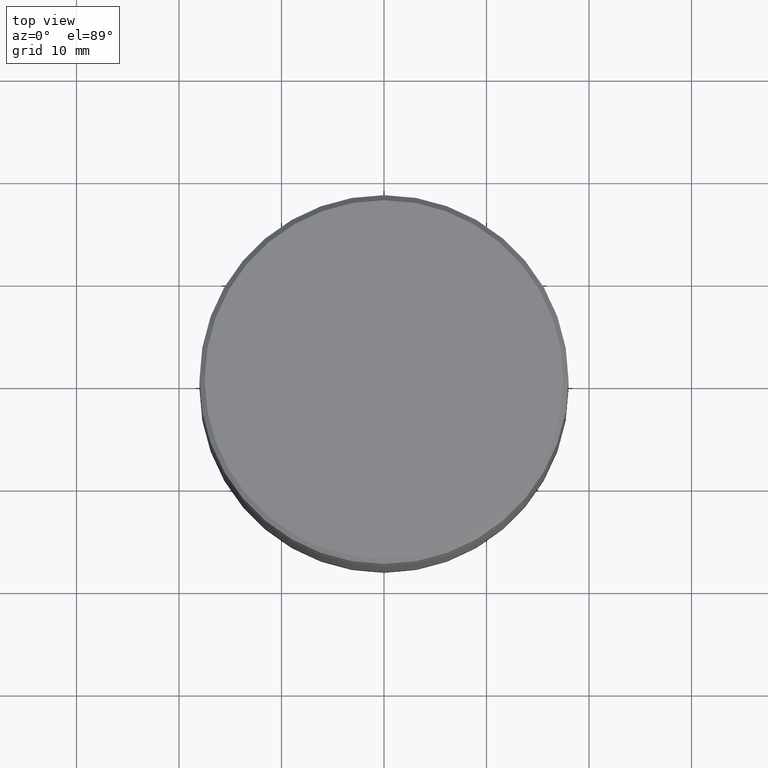
[diagram: clean part render]
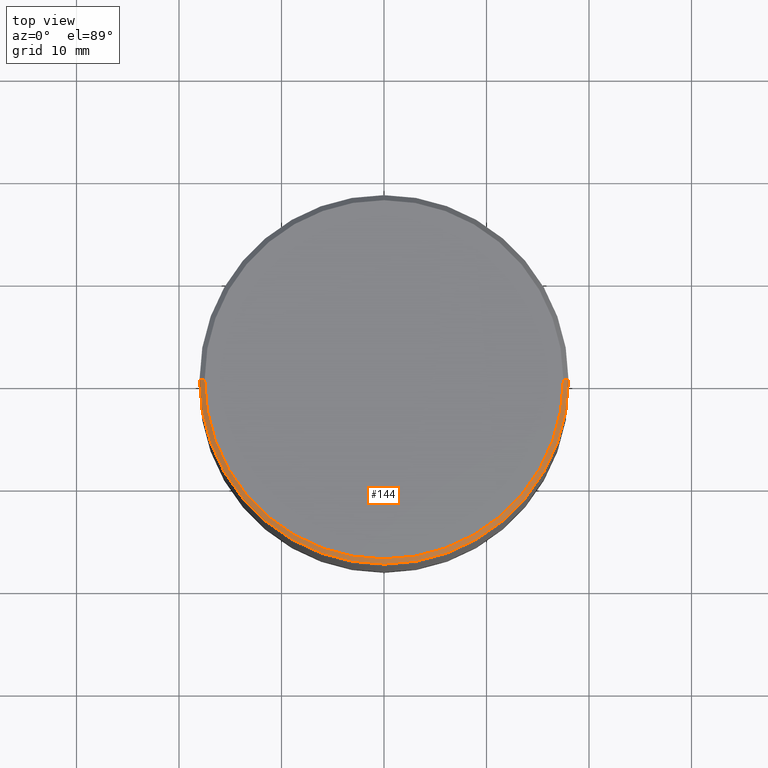
[diagram: same view with one face highlighted and labeled with its STEP entity id]
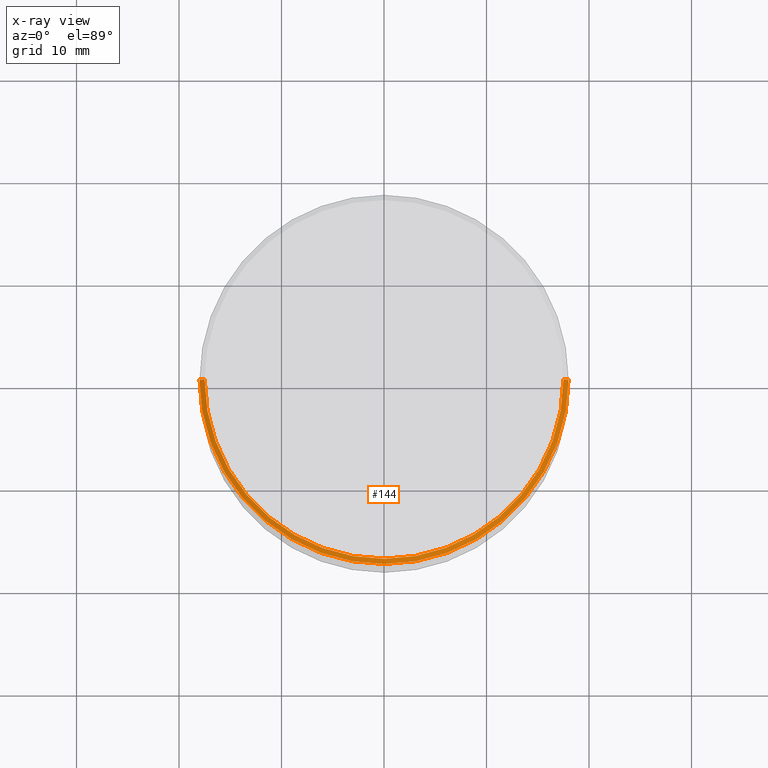
[diagram: x-ray of the same camera — body ghosted, the highlighted face saturated]
A machine part, top view. The second image highlights one B-rep face of the part: STEP entity #144.
The next image is the same camera in x-ray: the body ghosted, the highlighted face saturated — about 0% of this face is hidden behind the body in this view.
In plain terms, the highlighted conical surface has half-angle 45 deg.
Its self-contained STEP definition (entity closure, byte-faithful):
#23 = CARTESIAN_POINT ( 'NONE',  ( 17.50000000000000000, 2.173748068486551641E-15, 0.000000000000000000 ) ) ;
#26 = CARTESIAN_POINT ( 'NONE',  ( 0.000000000000000000, 0.000000000000000000, 0.000000000000000000 ) ) ;
#40 = VECTOR ( 'NONE', #531, 999.9999999999998863 ) ;
#53 = EDGE_CURVE ( 'NONE', #294, #68, #446, .T. ) ;
#68 = VERTEX_POINT ( 'NONE', #97 ) ;
#91 = LINE ( 'NONE', #183, #40 ) ;
#97 = CARTESIAN_POINT ( 'NONE',  ( -18.00000000000000000, 2.204364238465235428E-15, -0.5000000000000108802 ) ) ;
#108 = DIRECTION ( 'NONE',  ( -1.000000000000000000, 0.000000000000000000, 0.000000000000000000 ) ) ;
#111 = VECTOR ( 'NONE', #358, 999.9999999999998863 ) ;
#128 = DIRECTION ( 'NONE',  ( 1.000000000000000000, 0.000000000000000000, 0.000000000000000000 ) ) ;
#144 = ADVANCED_FACE ( 'NONE', ( #409 ), #337, .T. ) ;
#148 = ORIENTED_EDGE ( 'NONE', *, *, #53, .T. ) ;
#159 = DIRECTION ( 'NONE',  ( 0.000000000000000000, 0.000000000000000000, -1.000000000000000000 ) ) ;
#162 = ORIENTED_EDGE ( 'NONE', *, *, #378, .F. ) ;
#163 = CARTESIAN_POINT ( 'NONE',  ( 0.000000000000000000, 0.000000000000000000, -0.5000000000000108802 ) ) ;
#166 = DIRECTION ( 'NONE',  ( 1.000000000000000000, 0.000000000000000000, 0.000000000000000000 ) ) ;
#172 = CIRCLE ( 'NONE', #291, 18.00000000000000000 ) ;
#183 = CARTESIAN_POINT ( 'NONE',  ( 17.50000000000000000, 2.143131898507868248E-15, 0.000000000000000000 ) ) ;
#208 = EDGE_LOOP ( 'NONE', ( #162, #507, #148, #453 ) ) ;
#254 = CARTESIAN_POINT ( 'NONE',  ( 18.00000000000000000, 0.000000000000000000, -0.5000000000000108802 ) ) ;
#260 = AXIS2_PLACEMENT_3D ( 'NONE', #344, #478, #166 ) ;
#274 = EDGE_CURVE ( 'NONE', #294, #326, #303, .T. ) ;
#291 = AXIS2_PLACEMENT_3D ( 'NONE', #163, #159, #128 ) ;
#294 = VERTEX_POINT ( 'NONE', #332 ) ;
#303 = CIRCLE ( 'NONE', #260, 17.50000000000000000 ) ;
#326 = VERTEX_POINT ( 'NONE', #23 ) ;
#332 = CARTESIAN_POINT ( 'NONE',  ( -17.50000000000000000, 0.000000000000000000, 0.000000000000000000 ) ) ;
#337 = CONICAL_SURFACE ( 'NONE', #461, 17.50000000000000000, 0.7853981633974344012 ) ;
#344 = CARTESIAN_POINT ( 'NONE',  ( 0.000000000000000000, 0.000000000000000000, 0.000000000000000000 ) ) ;
#358 = DIRECTION ( 'NONE',  ( -0.7071067811865376918, 0.000000000000000000, -0.7071067811865574537 ) ) ;
#366 = EDGE_CURVE ( 'NONE', #396, #68, #172, .T. ) ;
#378 = EDGE_CURVE ( 'NONE', #326, #396, #91, .T. ) ;
#396 = VERTEX_POINT ( 'NONE', #254 ) ;
#401 = CARTESIAN_POINT ( 'NONE',  ( -17.50000000000000000, 0.000000000000000000, 0.000000000000000000 ) ) ;
#409 = FACE_OUTER_BOUND ( 'NONE', #208, .T. ) ;
#446 = LINE ( 'NONE', #401, #111 ) ;
#453 = ORIENTED_EDGE ( 'NONE', *, *, #366, .F. ) ;
#461 = AXIS2_PLACEMENT_3D ( 'NONE', #26, #508, #108 ) ;
#478 = DIRECTION ( 'NONE',  ( -0.000000000000000000, -0.000000000000000000, 1.000000000000000000 ) ) ;
#507 = ORIENTED_EDGE ( 'NONE', *, *, #274, .F. ) ;
#508 = DIRECTION ( 'NONE',  ( 0.000000000000000000, 0.000000000000000000, -1.000000000000000000 ) ) ;
#531 = DIRECTION ( 'NONE',  ( 0.7071067811865376918, 8.659560562354813296E-17, -0.7071067811865574537 ) ) ;